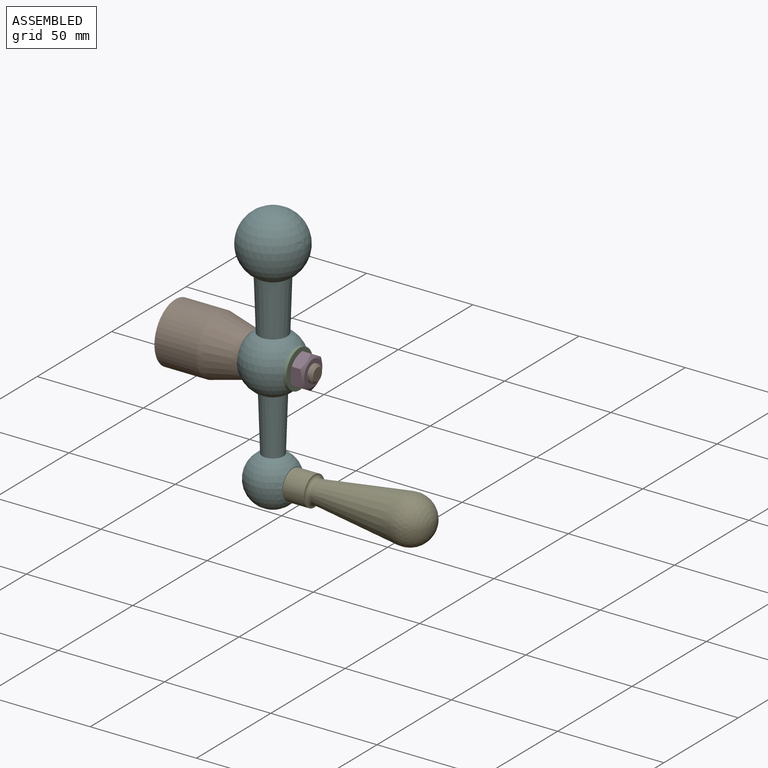
[diagram: assembled view]
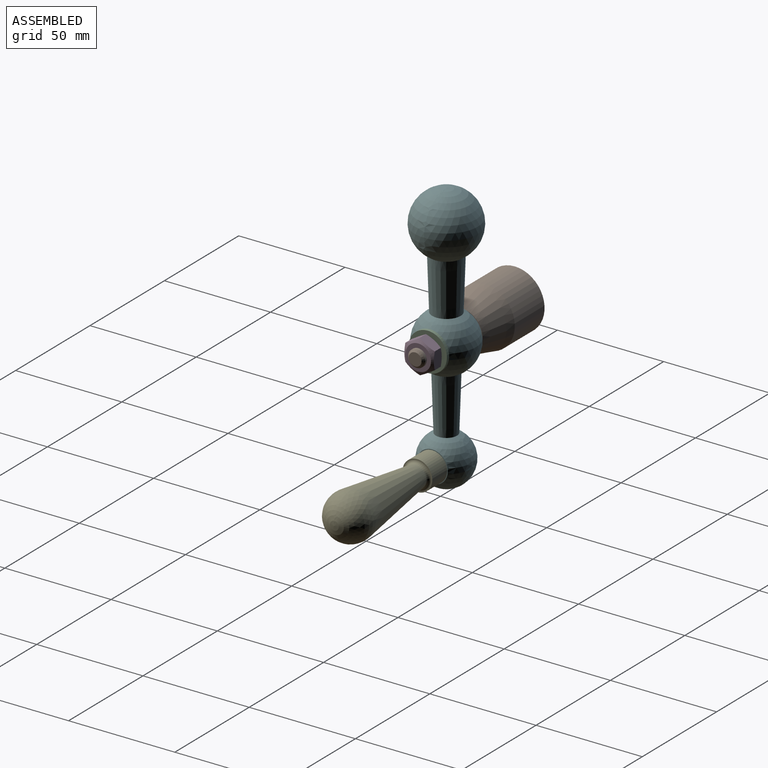
[diagram: assembled view, second angle]
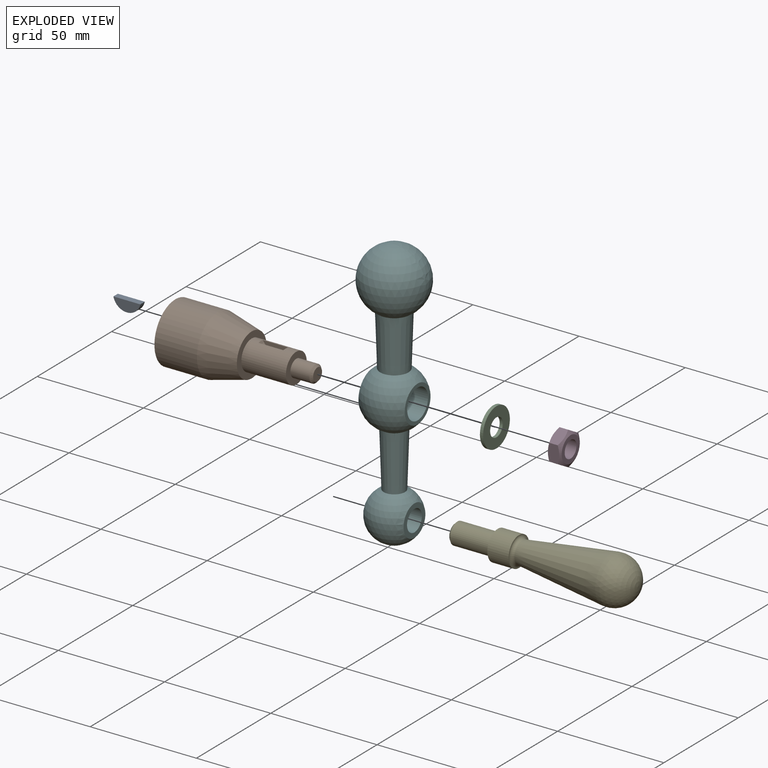
[diagram: exploded view]
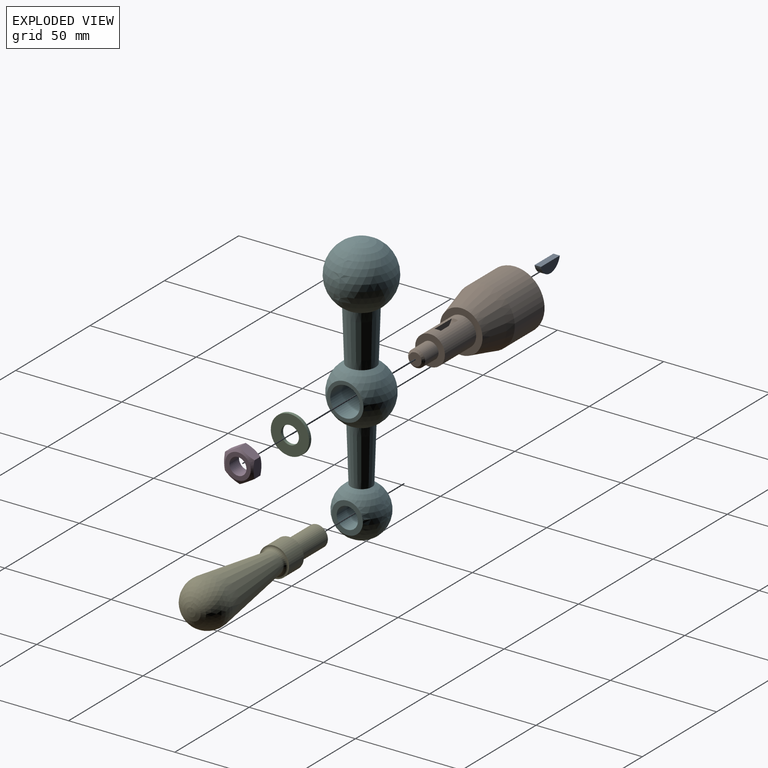
[diagram: exploded view, second angle]
ASSEMBLY  parts=6 mates=5
PART A: 4 faces, bbox 12.7x3x5.1 mm
  f0: plane 12.7x3mm, normal (0,0,1), area 38.1mm2, adj f1,f2,f3
  f1: cylinder r=6.5mm len=12.7mm, axis (0,1,0), area 52.9mm2, adj f0,f2,f3
  f2: plane 12.7x5.11mm, normal (0,-1,0), area 48.5mm2, adj f0,f1
  f3: plane 12.7x5.11mm, normal (0,1,0), area 48.5mm2, adj f0,f1
PART B: 12 faces, bbox 67x28x28 mm
  f0: cone r=4mm half-angle=45deg, axis (-1,0,0), area 31.1mm2, adj f1,f8
  f1: cylinder r=4mm len=9mm, axis (1,0,0), area 226.2mm2, adj f0,f2
  f2: plane 14x14mm, normal (1,0,0), area 103.7mm2, adj f1,f3
  f3: cylinder r=7mm len=21mm, axis (1,0,0), area 888mm2, adj f2,f4,f9,f10,f11
  f4: plane 20x20mm, normal (1,0,0), area 160.2mm2, adj f3,f5
  f5: cone r=14mm half-angle=14deg, axis (-1,0,0), area 1243.5mm2, adj f4,f6
  f6: cylinder r=14mm len=28mm, axis (1,0,0), area 1759.3mm2, adj f5,f7
  f7: plane 28x28mm, normal (-1,0,0), area 615.8mm2, adj f6
  f8: plane 6x6mm, normal (1,0,0), area 28.3mm2, adj f0
  f9: cylinder r=6.5mm len=11.84mm, axis (0,-1,0), area 44.3mm2, adj f3,f10,f11
  f10: plane 11.68x3.65mm, normal (0,-1,0), area 30.5mm2, adj f3,f9
  f11: plane 11.68x3.65mm, normal (0,1,0), area 30.5mm2, adj f3,f9
PART C: 4 faces, bbox 1.5x18x18 mm
  f0: cylinder r=4.25mm len=8.5mm, axis (-1,0,0), area 40.1mm2, adj f2,f3
  f1: cylinder r=9mm len=18mm, axis (-1,0,0), area 84.8mm2, adj f2,f3
  f2: plane 18x18mm, normal (1,0,0), area 197.7mm2, adj f0,f1
  f3: plane 18x18mm, normal (-1,0,0), area 197.7mm2, adj f0,f1
PART D: 11 faces, bbox 6.4x16x16 mm
  f0: cone r=8mm half-angle=59deg, axis (1,0,0), area 62mm2, adj f1,f2,f3,f4,f5,f6,f7
  f1: plane 12x12mm, normal (-1,0,0), area 62.8mm2, adj f0,f10
  f2: plane 6.93x5.3mm, normal (0,0.5,0.87), area 38.8mm2, adj f0,f3,f7,f9
  f3: plane 8.01x5.29mm, normal (0,1,0), area 38.8mm2, adj f0,f2,f4,f9
  f4: plane 6.93x5.3mm, normal (0,0.5,-0.87), area 38.8mm2, adj f0,f3,f5,f9
  f5: plane 6.93x5.3mm, normal (0,-0.5,-0.87), area 38.8mm2, adj f0,f4,f6,f9
  f6: plane 8.01x5.29mm, normal (0,-1,0), area 38.8mm2, adj f0,f5,f7,f9
  f7: plane 6.93x5.3mm, normal (0,-0.5,0.87), area 38.8mm2, adj f0,f2,f6,f9
  f8: plane 12x12mm, normal (1,0,0), area 62.8mm2, adj f9,f10
  f9: cone r=8mm half-angle=59deg, axis (-1,0,0), area 62mm2, adj f2,f3,f4,f5,f6,f7,f8
  f10: cylinder r=4mm len=8mm, axis (1,0,0), area 160.8mm2, adj f1,f8
PART E: 9 faces, bbox 86x22x22 mm
  f0: cone r=4mm half-angle=45deg, axis (1,0,0), area 40mm2, adj f1,f7
  f1: plane 8x8mm, normal (-1,0,0), area 50.3mm2, adj f0
  f2: sphere r=11mm, area 862.4mm2, adj f3
  f3: cone r=5mm half-angle=7.7deg, axis (1,0,0), area 2138.7mm2, adj f2,f8
  f4: plane 14x14mm, normal (1,0,0), area 12.2mm2, adj f5,f8
  f5: cylinder r=7mm len=14mm, axis (-1,0,0), area 439.8mm2, adj f4,f6
  f6: plane 14x14mm, normal (-1,0,0), area 75.4mm2, adj f5,f7
  f7: cylinder r=5mm len=19mm, axis (-1,0,0), area 596.9mm2, adj f0,f6
  f8: torus R=6.72mm, axis (1,0,0), area 91.9mm2, adj f3,f4
PART F: 16 faces, bbox 30x30x127 mm
  f0: plane 19.6x19.6mm, normal (-1,0,0), area 143.6mm2, adj f1,f8,f9,f10,f11
  f1: sphere r=14mm, area 1584.3mm2, adj f0,f3,f4,f7
  f2: sphere r=15mm, area 2638mm2, adj f3
  f3: cone r=7.5mm half-angle=1.9deg, axis (0,0,1), area 1102mm2, adj f1,f2
  f4: cone r=5.87mm half-angle=1.9deg, axis (0,0,1), area 901mm2, adj f1,f5
  f5: sphere r=12mm, area 1538.8mm2, adj f4,f6
  f6: plane 14.66x14.66mm, normal (1,0,0), area 90.3mm2, adj f5,f13
  f7: plane 17.32x17.32mm, normal (1,0,0), area 81.7mm2, adj f1,f8
  f8: cylinder r=7mm len=21mm, axis (-1,0,0), area 875.3mm2, adj f0,f7,f9,f11,f12
  f9: plane 16x1.46mm, normal (0,1,0), area 23.4mm2, adj f0,f8,f10,f12
  f10: plane 16x3mm, normal (0,0,-1), area 48mm2, adj f0,f9,f11,f12
  f11: plane 16x1.46mm, normal (0,-1,0), area 23.4mm2, adj f0,f8,f10,f12
  f12: plane 3x1.46mm, normal (-1,0,0), area 4.1mm2, adj f8,f9,f10,f11
  f13: cylinder r=5mm len=19mm, axis (1,0,0), area 596.9mm2, adj f6,f15
  f14: plane 8x8mm, normal (1,0,0), area 50.3mm2, adj f15
  f15: cone r=4mm half-angle=45deg, axis (1,0,0), area 40mm2, adj f13,f14
PLACE A t=(46.08,0,8.3)mm
PLACE B at identity
PLACE C t=(57.75,0,0)mm
PLACE D t=(61.7,0,0)mm
PLACE E t=(35.5,0,-50)mm
PLACE F t=(46,0,0)mm
MATE fastened A.f1 <-> B.f9  axis (0,-1,0) through (46.08,-1.5,9.69)mm
MATE fastened D.f10 <-> C.f0  axis (1,0,0) through (58.5,0,0)mm
MATE fastened C.f0 <-> B.f0  axis (-1,0,0) through (57,0,0)mm
MATE fastened E.f0 <-> F.f15  axis (-1,0,0) through (35.5,0,-50)mm
MATE fastened F.f8 <-> B.f0  axis (-1,0,0) through (36,0,0)mm
